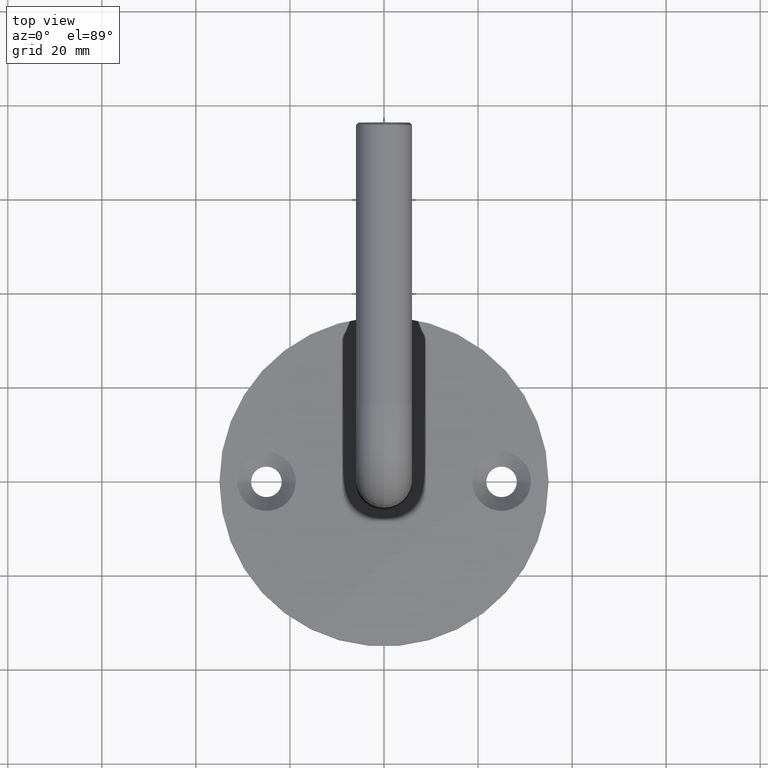
[diagram: clean part render]
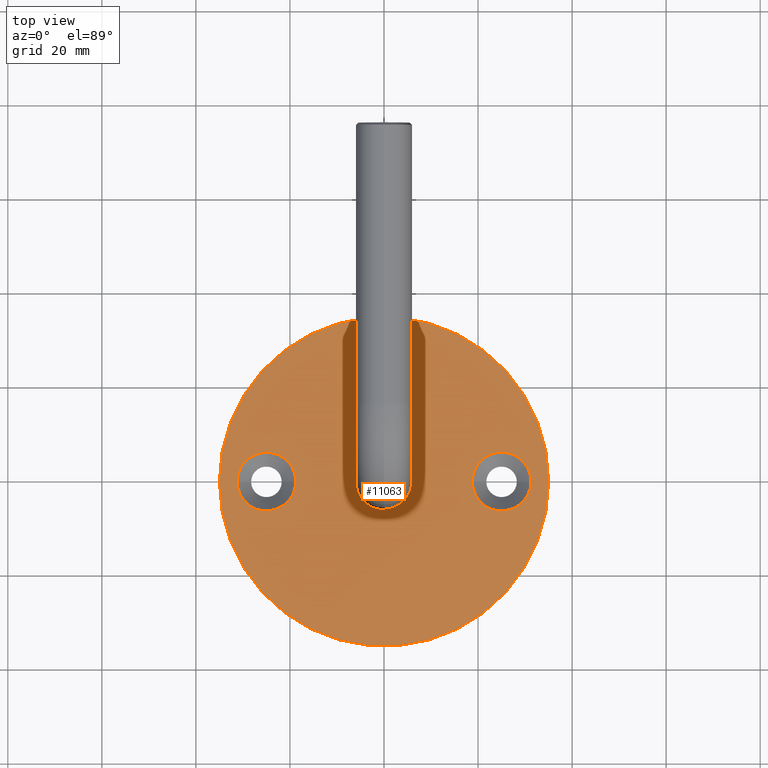
[diagram: same view with one face highlighted and labeled with its STEP entity id]
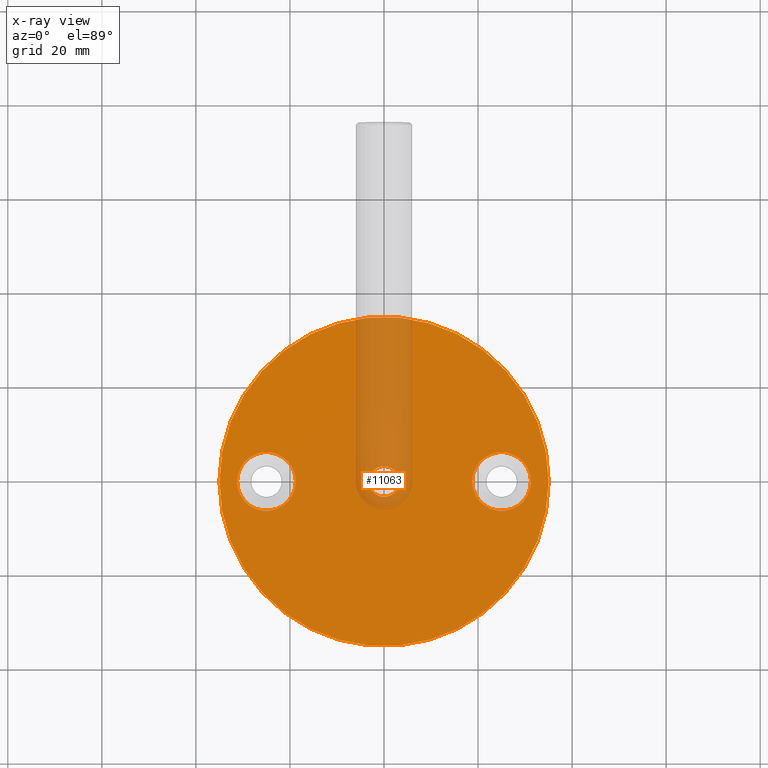
[diagram: x-ray of the same camera — body ghosted, the highlighted face saturated]
A machine part, top view. The second image highlights one B-rep face of the part: STEP entity #11063.
The next image is the same camera in x-ray: the body ghosted, the highlighted face saturated — about 12% of this face is hidden behind the body in this view.
In plain terms, the highlighted planar face has unit normal (0, 0, 1).
Its self-contained STEP definition (entity closure, byte-faithful):
#24 = DIRECTION ( 'NONE',  ( -0.000000000000000000, -0.000000000000000000, -1.000000000000000000 ) ) ;
#305 = EDGE_CURVE ( 'NONE', #4755, #1294, #7928, .T. ) ;
#421 = FACE_BOUND ( 'NONE', #10223, .T. ) ;
#685 = ORIENTED_EDGE ( 'NONE', *, *, #15797, .T. ) ;
#902 = DIRECTION ( 'NONE',  ( 0.000000000000000000, 0.000000000000000000, 1.000000000000000000 ) ) ;
#1093 = DIRECTION ( 'NONE',  ( 1.000000000000000000, 0.000000000000000000, 0.000000000000000000 ) ) ;
#1118 = AXIS2_PLACEMENT_3D ( 'NONE', #4202, #5625, #5884 ) ;
#1294 = VERTEX_POINT ( 'NONE', #16176 ) ;
#1658 = CIRCLE ( 'NONE', #17410, 35.00000000000000711 ) ;
#2064 = AXIS2_PLACEMENT_3D ( 'NONE', #12641, #8368, #1093 ) ;
#2146 = EDGE_CURVE ( 'NONE', #17320, #18517, #18671, .T. ) ;
#2465 = DIRECTION ( 'NONE',  ( -1.000000000000000000, 0.000000000000000000, 0.000000000000000000 ) ) ;
#2663 = CIRCLE ( 'NONE', #15335, 35.00000000000000711 ) ;
#3139 = CARTESIAN_POINT ( 'NONE',  ( 18.75000000000000355, 6.858022075225180130E-15, 4.000000000000001776 ) ) ;
#3151 = FACE_BOUND ( 'NONE', #13879, .T. ) ;
#3162 = CARTESIAN_POINT ( 'NONE',  ( 25.00000000000000000, 6.092617825758084665E-15, 4.000000000000001776 ) ) ;
#3346 = DIRECTION ( 'NONE',  ( 1.000000000000000000, 0.000000000000000000, 0.000000000000000000 ) ) ;
#3552 = ORIENTED_EDGE ( 'NONE', *, *, #2146, .T. ) ;
#3743 = CARTESIAN_POINT ( 'NONE',  ( 3.249999999999999112, 3.980102097228896752E-16, 4.000000000000000888 ) ) ;
#3746 = CARTESIAN_POINT ( 'NONE',  ( 0.000000000000000000, 0.000000000000000000, 4.000000000000000888 ) ) ;
#4202 = CARTESIAN_POINT ( 'NONE',  ( 0.000000000000000000, 0.000000000000000000, 4.000000000000000000 ) ) ;
#4755 = VERTEX_POINT ( 'NONE', #3139 ) ;
#5166 = VERTEX_POINT ( 'NONE', #17187 ) ;
#5465 = CIRCLE ( 'NONE', #2064, 6.249999999999998224 ) ;
#5625 = DIRECTION ( 'NONE',  ( 0.000000000000000000, 0.000000000000000000, 1.000000000000000000 ) ) ;
#5884 = DIRECTION ( 'NONE',  ( 1.000000000000000000, 0.000000000000000000, -0.000000000000000000 ) ) ;
#6153 = EDGE_CURVE ( 'NONE', #14168, #5166, #17886, .T. ) ;
#6170 = AXIS2_PLACEMENT_3D ( 'NONE', #10281, #24, #10165 ) ;
#6427 = DIRECTION ( 'NONE',  ( 1.000000000000000000, 0.000000000000000000, 0.000000000000000000 ) ) ;
#6635 = DIRECTION ( 'NONE',  ( 1.000000000000000000, 0.000000000000000000, 0.000000000000000000 ) ) ;
#6758 = DIRECTION ( 'NONE',  ( 1.000000000000000000, 0.000000000000000000, 0.000000000000000000 ) ) ;
#7370 = DIRECTION ( 'NONE',  ( 1.000000000000000000, 0.000000000000000000, 0.000000000000000000 ) ) ;
#7555 = DIRECTION ( 'NONE',  ( 0.000000000000000000, 0.000000000000000000, 1.000000000000000000 ) ) ;
#7928 = CIRCLE ( 'NONE', #10818, 6.249999999999998224 ) ;
#8126 = CIRCLE ( 'NONE', #18011, 6.249999999999998224 ) ;
#8173 = DIRECTION ( 'NONE',  ( -0.000000000000000000, -0.000000000000000000, 1.000000000000000000 ) ) ;
#8368 = DIRECTION ( 'NONE',  ( -0.000000000000000000, -0.000000000000000000, 1.000000000000000000 ) ) ;
#8510 = ORIENTED_EDGE ( 'NONE', *, *, #6153, .F. ) ;
#8926 = CARTESIAN_POINT ( 'NONE',  ( 35.00000000000000711, 4.286263797015737285E-15, 4.000000000000000000 ) ) ;
#9104 = EDGE_CURVE ( 'NONE', #5166, #14168, #5465, .T. ) ;
#9390 = AXIS2_PLACEMENT_3D ( 'NONE', #15043, #10763, #6427 ) ;
#9554 = CARTESIAN_POINT ( 'NONE',  ( 25.00000000000000000, 6.092617825758084665E-15, 4.000000000000001776 ) ) ;
#9560 = CARTESIAN_POINT ( 'NONE',  ( 0.000000000000000000, 0.000000000000000000, 4.000000000000000000 ) ) ;
#10089 = CARTESIAN_POINT ( 'NONE',  ( -18.75000000000000355, -3.061616997868140813E-17, 4.000000000000001776 ) ) ;
#10165 = DIRECTION ( 'NONE',  ( -1.000000000000000000, 0.000000000000000000, 0.000000000000000000 ) ) ;
#10223 = EDGE_LOOP ( 'NONE', ( #13157, #13109 ) ) ;
#10281 = CARTESIAN_POINT ( 'NONE',  ( 0.000000000000000000, 0.000000000000000000, 4.000000000000000888 ) ) ;
#10738 = VERTEX_POINT ( 'NONE', #14709 ) ;
#10743 = EDGE_CURVE ( 'NONE', #10738, #13518, #2663, .T. ) ;
#10763 = DIRECTION ( 'NONE',  ( -0.000000000000000000, -0.000000000000000000, 1.000000000000000000 ) ) ;
#10818 = AXIS2_PLACEMENT_3D ( 'NONE', #9554, #8173, #6758 ) ;
#10983 = DIRECTION ( 'NONE',  ( -0.000000000000000000, -0.000000000000000000, -1.000000000000000000 ) ) ;
#11063 = ADVANCED_FACE ( 'NONE', ( #3151, #18977, #421, #15021 ), #17284, .T. ) ;
#11261 = CIRCLE ( 'NONE', #11622, 3.249999999999999112 ) ;
#11503 = CARTESIAN_POINT ( 'NONE',  ( -3.249999999999999112, 0.000000000000000000, 4.000000000000000888 ) ) ;
#11517 = ORIENTED_EDGE ( 'NONE', *, *, #15792, .T. ) ;
#11622 = AXIS2_PLACEMENT_3D ( 'NONE', #3746, #10983, #2465 ) ;
#12641 = CARTESIAN_POINT ( 'NONE',  ( -25.00000000000000000, -3.061616997868140813E-17, 4.000000000000001776 ) ) ;
#12763 = EDGE_CURVE ( 'NONE', #1294, #4755, #8126, .T. ) ;
#13109 = ORIENTED_EDGE ( 'NONE', *, *, #305, .F. ) ;
#13157 = ORIENTED_EDGE ( 'NONE', *, *, #12763, .F. ) ;
#13377 = DIRECTION ( 'NONE',  ( -0.000000000000000000, -0.000000000000000000, 1.000000000000000000 ) ) ;
#13423 = CARTESIAN_POINT ( 'NONE',  ( 0.000000000000000000, 0.000000000000000000, 4.000000000000000000 ) ) ;
#13518 = VERTEX_POINT ( 'NONE', #8926 ) ;
#13879 = EDGE_LOOP ( 'NONE', ( #3552, #685 ) ) ;
#14168 = VERTEX_POINT ( 'NONE', #10089 ) ;
#14544 = ORIENTED_EDGE ( 'NONE', *, *, #10743, .T. ) ;
#14709 = CARTESIAN_POINT ( 'NONE',  ( -35.00000000000000711, 0.000000000000000000, 4.000000000000000000 ) ) ;
#15021 = FACE_OUTER_BOUND ( 'NONE', #17657, .T. ) ;
#15043 = CARTESIAN_POINT ( 'NONE',  ( -25.00000000000000000, -3.061616997868140813E-17, 4.000000000000001776 ) ) ;
#15335 = AXIS2_PLACEMENT_3D ( 'NONE', #13423, #7555, #7370 ) ;
#15792 = EDGE_CURVE ( 'NONE', #13518, #10738, #1658, .T. ) ;
#15797 = EDGE_CURVE ( 'NONE', #18517, #17320, #11261, .T. ) ;
#15871 = ORIENTED_EDGE ( 'NONE', *, *, #9104, .F. ) ;
#16114 = EDGE_LOOP ( 'NONE', ( #8510, #15871 ) ) ;
#16176 = CARTESIAN_POINT ( 'NONE',  ( 31.25000000000000000, 6.092617825758084665E-15, 4.000000000000001776 ) ) ;
#17187 = CARTESIAN_POINT ( 'NONE',  ( -31.25000000000000000, 7.347880794884141430E-16, 4.000000000000001776 ) ) ;
#17284 = PLANE ( 'NONE',  #1118 ) ;
#17320 = VERTEX_POINT ( 'NONE', #11503 ) ;
#17410 = AXIS2_PLACEMENT_3D ( 'NONE', #9560, #902, #6635 ) ;
#17657 = EDGE_LOOP ( 'NONE', ( #14544, #11517 ) ) ;
#17886 = CIRCLE ( 'NONE', #9390, 6.249999999999998224 ) ;
#18011 = AXIS2_PLACEMENT_3D ( 'NONE', #3162, #13377, #3346 ) ;
#18517 = VERTEX_POINT ( 'NONE', #3743 ) ;
#18671 = CIRCLE ( 'NONE', #6170, 3.249999999999999112 ) ;
#18977 = FACE_BOUND ( 'NONE', #16114, .T. ) ;